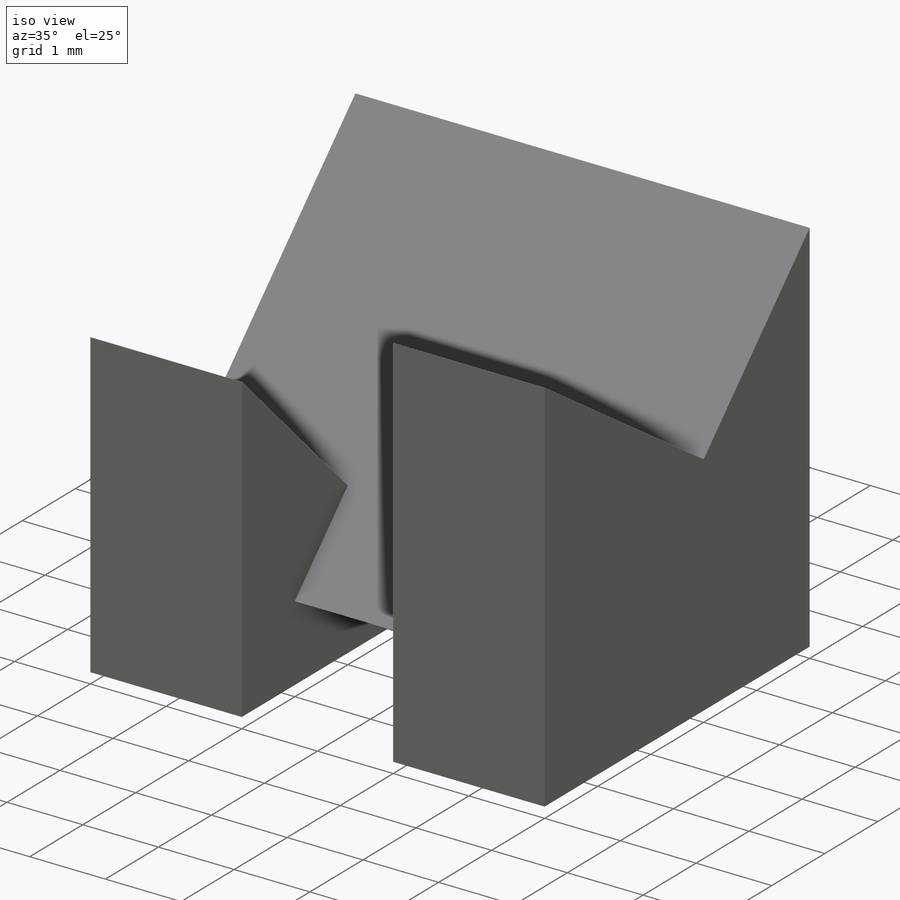
[diagram: iso view]
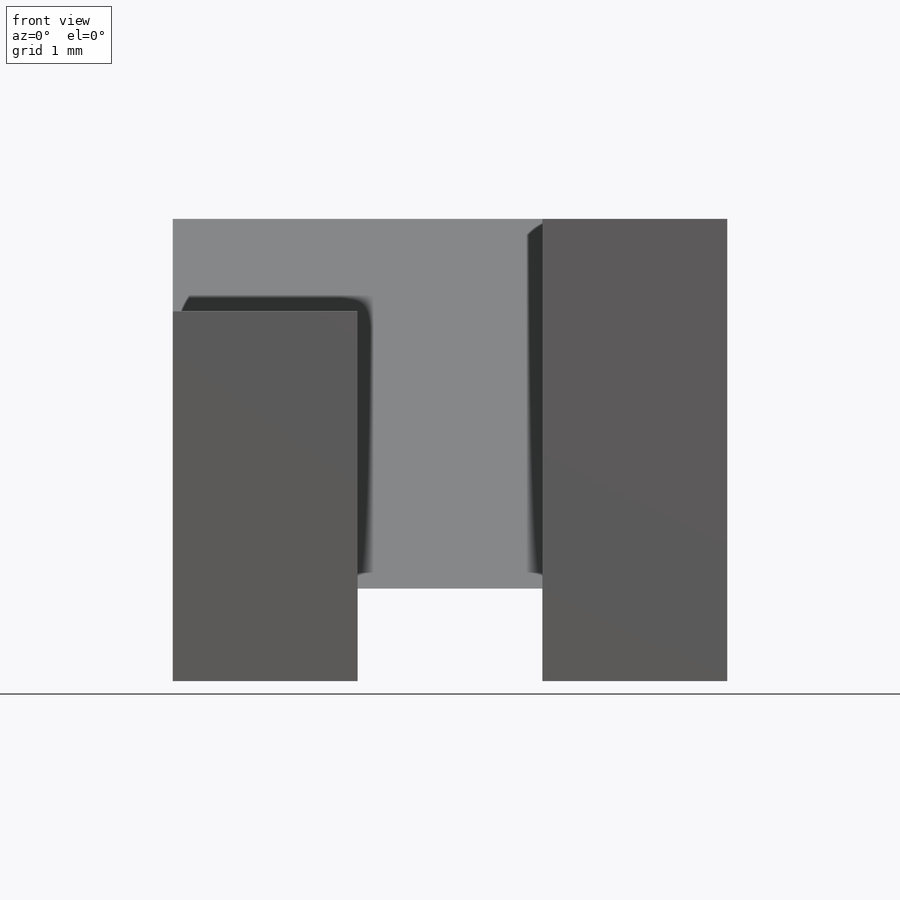
[diagram: front view]
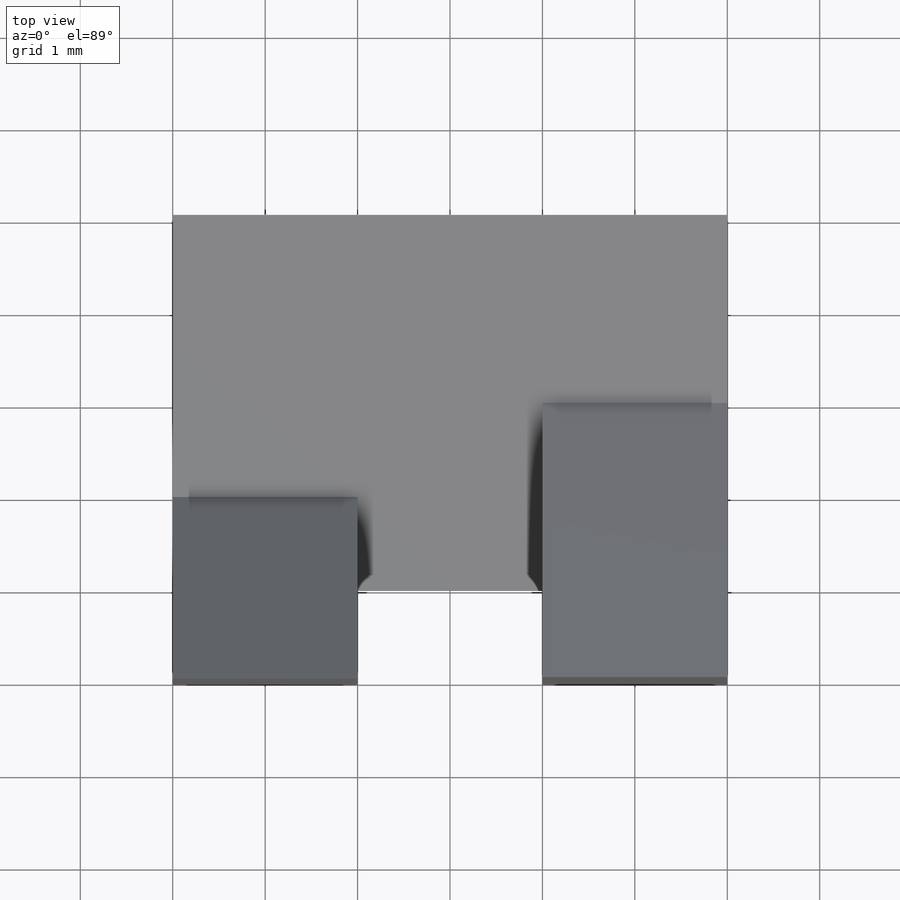
[diagram: top view]
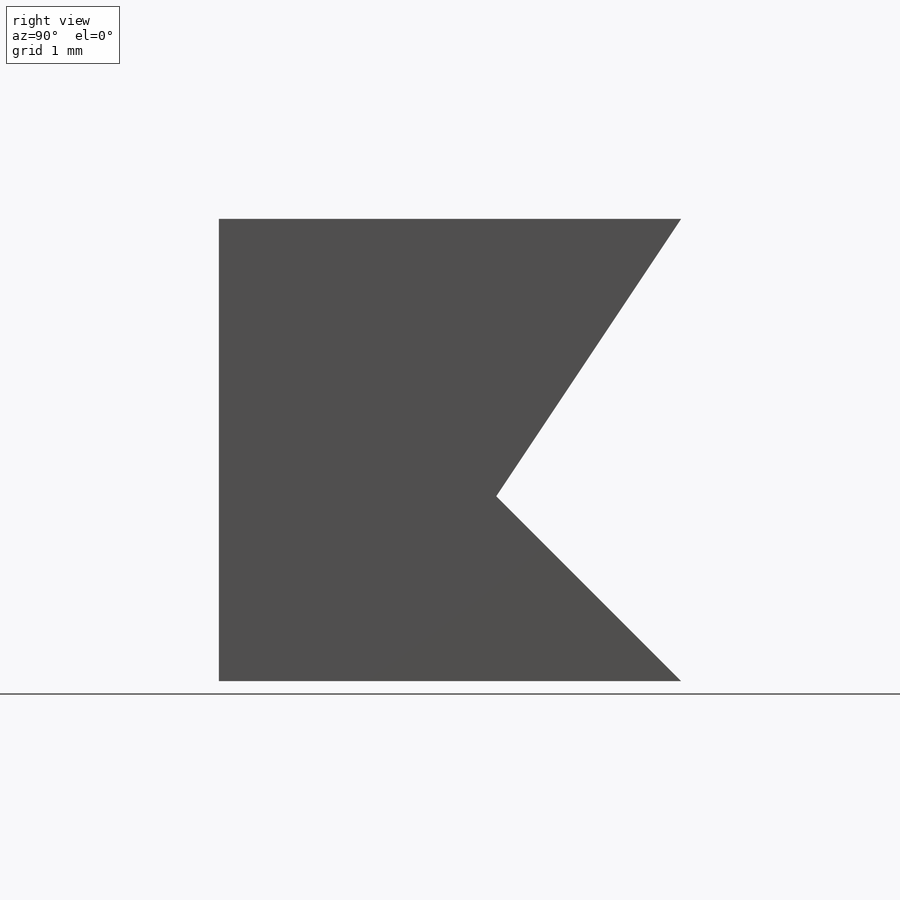
[diagram: right view]
SOLIDWORKS PART (.sldprt)
format: sldprt  version: not decoded by parser v0  size: 198,656 bytes
history: native  units: mm
features: sketch x6, cut_extrude x4, extrude x2, material x1 (+13 scaffold rows collapsed)
feature tree (26):
  scaffold x13  (default folders/planes/origin — collapsed)
  material  "Material <not specified>"
  sketch  "Sketch7"  dims[D1=5.0mm D2=6.0mm D3=2.0mm D4=2.0mm D5=1.0mm]
  extrude  "Boss-Extrude2"  Depth=5mm
  sketch  "Sketch23"  dims[D1=1.0mm D2=2.0mm D3=2.0mm]
  cut_extrude  "Cut-Extrude16"  Depth=5mm
  sketch  "Sketch24"
  cut_extrude  "Cut-Extrude17"  Depth=7mm
  sketch  "Sketch25"  dims[D1=2.0mm D2=3.0mm D3=2.0mm]
  extrude  "Boss-Extrude5"  Depth=5mm
  sketch  "Sketch26"  dims[D1=1.0mm]
  cut_extrude  "Cut-Extrude18"  Depth=2mm
  sketch  "Sketch27"
  cut_extrude  "Cut-Extrude19"  Depth=2mm
decode coverage: 10 of 12 modeling features carry decoded parameters
note: suppression state not decoded; provenance and decode notes live in map.json
